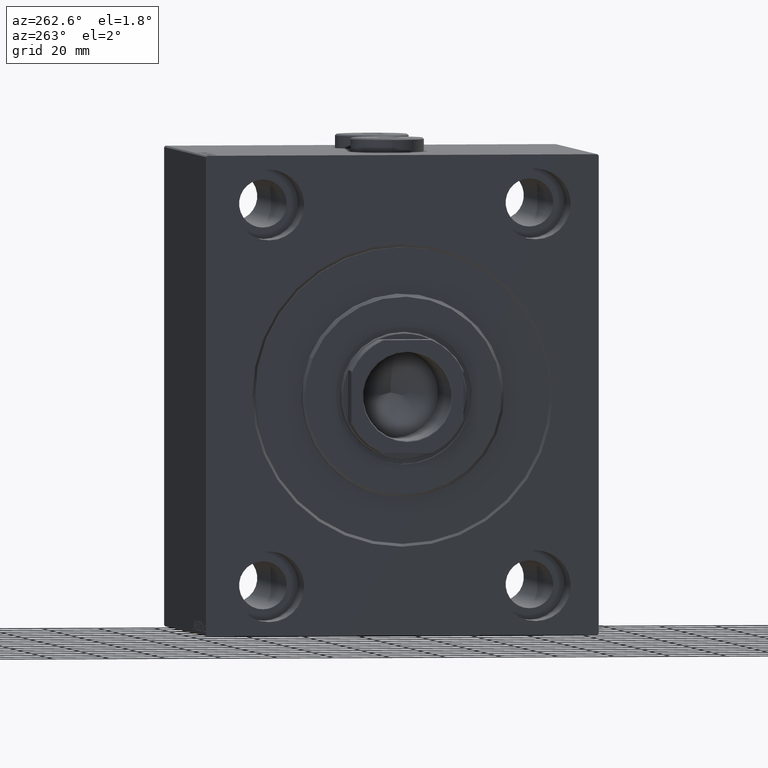
[diagram: clean part render]
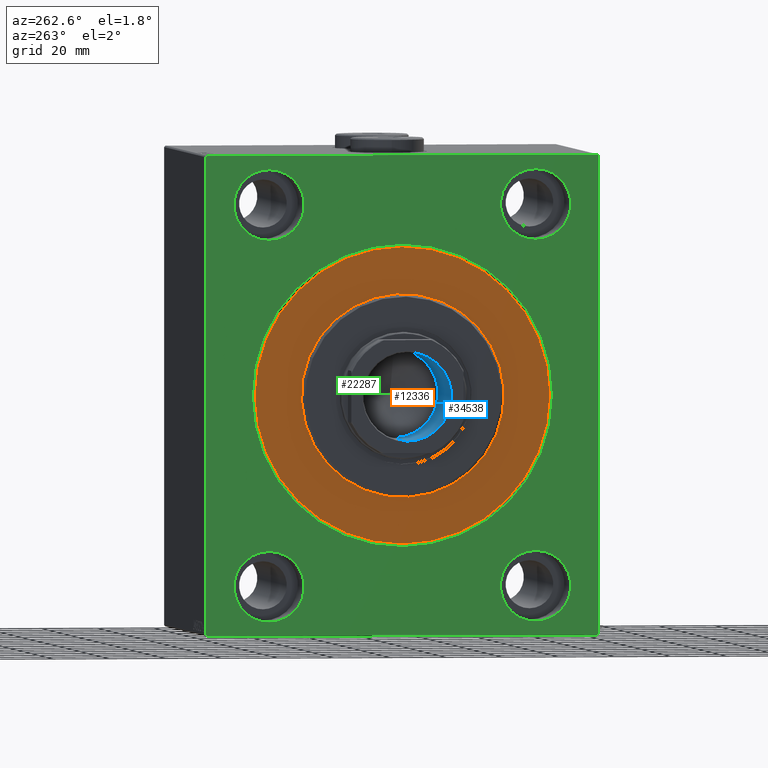
[diagram: same view with three faces highlighted in distinct colors, each labeled with its STEP entity id]
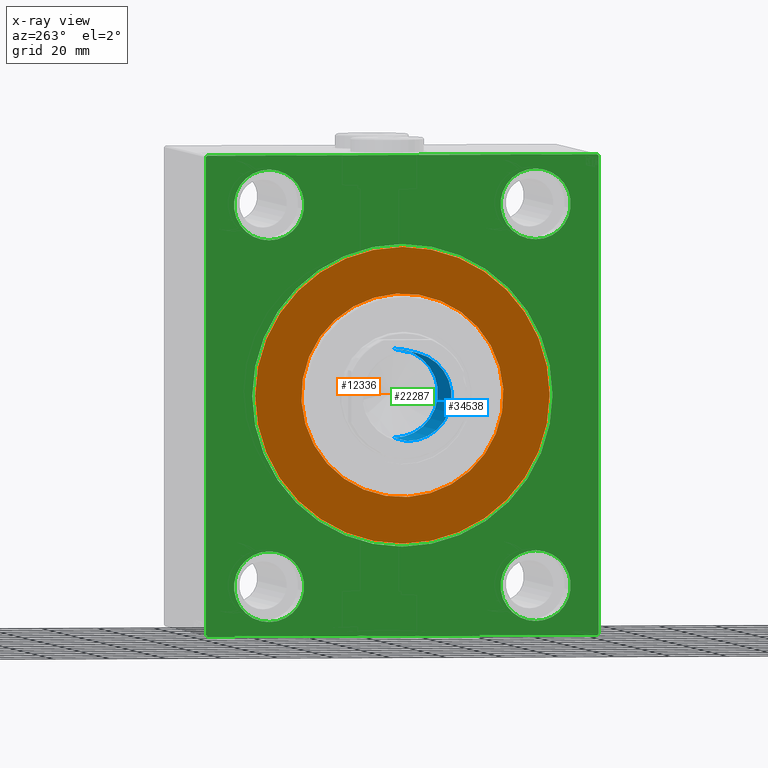
[diagram: x-ray of the same camera — body ghosted, the three highlighted faces saturated]
A machine part, auxiliary view with three faces highlighted in distinct colors.
The next image is the same camera in x-ray (body ghosted, the three faces saturated) — at least one of them is partly hidden behind the body in this view.
Their STEP definitions:

[orange] entity #12336 — the highlighted planar face has unit normal (1, 0, -0).
#628 = ORIENTED_EDGE ( 'NONE', *, *, #36637, .F. ) ;
#725 = CARTESIAN_POINT ( 'NONE',  ( 0.000000000000000000, 0.000000000000000000, 0.000000000000000000 ) ) ;
#790 = ORIENTED_EDGE ( 'NONE', *, *, #11684, .F. ) ;
#2940 = CARTESIAN_POINT ( 'NONE',  ( 0.000000000000000000, 6.429395695523603167E-15, 52.49999999999999289 ) ) ;
#5481 = VERTEX_POINT ( 'NONE', #2940 ) ;
#5605 = AXIS2_PLACEMENT_3D ( 'NONE', #25357, #11427, #39275 ) ;
#5658 = CARTESIAN_POINT ( 'NONE',  ( 0.000000000000000000, 0.000000000000000000, 0.000000000000000000 ) ) ;
#6118 = DIRECTION ( 'NONE',  ( 1.000000000000000000, -0.000000000000000000, 0.000000000000000000 ) ) ;
#7920 = ORIENTED_EDGE ( 'NONE', *, *, #26193, .F. ) ;
#9304 = DIRECTION ( 'NONE',  ( 0.000000000000000000, 0.000000000000000000, -1.000000000000000000 ) ) ;
#11427 = DIRECTION ( 'NONE',  ( -1.000000000000000000, 0.000000000000000000, 0.000000000000000000 ) ) ;
#11684 = EDGE_CURVE ( 'NONE', #39314, #5481, #16684, .T. ) ;
#12336 = ADVANCED_FACE ( 'NONE', ( #20158, #13306 ), #23815, .F. ) ;
#13306 = FACE_OUTER_BOUND ( 'NONE', #32731, .T. ) ;
#13818 = VERTEX_POINT ( 'NONE', #43102 ) ;
#13885 = EDGE_CURVE ( 'NONE', #13818, #19456, #22542, .T. ) ;
#16684 = CIRCLE ( 'NONE', #19577, 52.49999999999999289 ) ;
#18201 = AXIS2_PLACEMENT_3D ( 'NONE', #5658, #6118, #9304 ) ;
#19450 = CIRCLE ( 'NONE', #5605, 52.49999999999999289 ) ;
#19456 = VERTEX_POINT ( 'NONE', #42194 ) ;
#19577 = AXIS2_PLACEMENT_3D ( 'NONE', #725, #34746, #42486 ) ;
#19931 = DIRECTION ( 'NONE',  ( 0.000000000000000000, 0.000000000000000000, 1.000000000000000000 ) ) ;
#20158 = FACE_BOUND ( 'NONE', #38298, .T. ) ;
#21625 = ORIENTED_EDGE ( 'NONE', *, *, #13885, .F. ) ;
#22542 = CIRCLE ( 'NONE', #18201, 36.00000000000000000 ) ;
#22588 = CARTESIAN_POINT ( 'NONE',  ( 0.000000000000000000, 0.000000000000000000, 0.000000000000000000 ) ) ;
#23027 = DIRECTION ( 'NONE',  ( 0.000000000000000000, 0.000000000000000000, -1.000000000000000000 ) ) ;
#23815 = PLANE ( 'NONE',  #37066 ) ;
#25357 = CARTESIAN_POINT ( 'NONE',  ( 0.000000000000000000, 0.000000000000000000, 0.000000000000000000 ) ) ;
#26193 = EDGE_CURVE ( 'NONE', #19456, #13818, #43981, .T. ) ;
#26917 = DIRECTION ( 'NONE',  ( 1.000000000000000000, -0.000000000000000000, 0.000000000000000000 ) ) ;
#27008 = DIRECTION ( 'NONE',  ( -1.000000000000000000, 0.000000000000000000, 0.000000000000000000 ) ) ;
#27236 = CARTESIAN_POINT ( 'NONE',  ( 0.000000000000000000, 0.000000000000000000, 0.000000000000000000 ) ) ;
#32731 = EDGE_LOOP ( 'NONE', ( #790, #628 ) ) ;
#33371 = CARTESIAN_POINT ( 'NONE',  ( 0.000000000000000000, 0.000000000000000000, -52.49999999999999289 ) ) ;
#34746 = DIRECTION ( 'NONE',  ( -1.000000000000000000, 0.000000000000000000, 0.000000000000000000 ) ) ;
#36637 = EDGE_CURVE ( 'NONE', #5481, #39314, #19450, .T. ) ;
#37066 = AXIS2_PLACEMENT_3D ( 'NONE', #27236, #27008, #19931 ) ;
#38298 = EDGE_LOOP ( 'NONE', ( #21625, #7920 ) ) ;
#39275 = DIRECTION ( 'NONE',  ( 0.000000000000000000, 0.000000000000000000, 1.000000000000000000 ) ) ;
#39314 = VERTEX_POINT ( 'NONE', #33371 ) ;
#39650 = AXIS2_PLACEMENT_3D ( 'NONE', #22588, #26917, #23027 ) ;
#42194 = CARTESIAN_POINT ( 'NONE',  ( 0.000000000000000000, 4.408728476930470856E-15, -36.00000000000000000 ) ) ;
#42486 = DIRECTION ( 'NONE',  ( 0.000000000000000000, 0.000000000000000000, 1.000000000000000000 ) ) ;
#43102 = CARTESIAN_POINT ( 'NONE',  ( 0.000000000000000000, 0.000000000000000000, 36.00000000000000000 ) ) ;
#43981 = CIRCLE ( 'NONE', #39650, 36.00000000000000000 ) ;

[blue] entity #34538 — the highlighted cylindrical surface (partial cylindrical patch) has radius 15.75 mm, axis along (-1, 0, 0).
#590 = CARTESIAN_POINT ( 'NONE',  ( 15.74999999999999289, 0.000000000000000000, 64.99999999999998579 ) ) ;
#1357 = VERTEX_POINT ( 'NONE', #33949 ) ;
#3174 = DIRECTION ( 'NONE',  ( -0.000000000000000000, -0.000000000000000000, 1.000000000000000000 ) ) ;
#5962 = ORIENTED_EDGE ( 'NONE', *, *, #35324, .T. ) ;
#6267 = CIRCLE ( 'NONE', #31780, 15.74999999999999289 ) ;
#8331 = VERTEX_POINT ( 'NONE', #24083 ) ;
#9682 = CARTESIAN_POINT ( 'NONE',  ( -15.74999999999999289, 1.928818708657080556E-15, 64.99999999999998579 ) ) ;
#10763 = DIRECTION ( 'NONE',  ( 1.000000000000000000, 0.000000000000000000, 0.000000000000000000 ) ) ;
#12342 = EDGE_LOOP ( 'NONE', ( #23471, #43725, #5962, #32280 ) ) ;
#13895 = CARTESIAN_POINT ( 'NONE',  ( 0.000000000000000000, 0.000000000000000000, 64.99999999999998579 ) ) ;
#15257 = EDGE_CURVE ( 'NONE', #8331, #1357, #30686, .T. ) ;
#16025 = VECTOR ( 'NONE', #27260, 1000.000000000000000 ) ;
#16245 = CIRCLE ( 'NONE', #32289, 15.74999999999999289 ) ;
#17841 = DIRECTION ( 'NONE',  ( -0.000000000000000000, -0.000000000000000000, 1.000000000000000000 ) ) ;
#18478 = EDGE_CURVE ( 'NONE', #33972, #21279, #38269, .T. ) ;
#19429 = DIRECTION ( 'NONE',  ( 1.000000000000000000, 0.000000000000000000, 0.000000000000000000 ) ) ;
#20286 = DIRECTION ( 'NONE',  ( 1.000000000000000000, 0.000000000000000000, 0.000000000000000000 ) ) ;
#21279 = VERTEX_POINT ( 'NONE', #30321 ) ;
#23471 = ORIENTED_EDGE ( 'NONE', *, *, #27397, .F. ) ;
#24083 = CARTESIAN_POINT ( 'NONE',  ( -15.74999999999999289, 1.928818708657080556E-15, 26.99999999999998934 ) ) ;
#24551 = CARTESIAN_POINT ( 'NONE',  ( 15.74999999999999289, 0.000000000000000000, 26.99999999999998934 ) ) ;
#25843 = DIRECTION ( 'NONE',  ( 0.000000000000000000, 0.000000000000000000, 1.000000000000000000 ) ) ;
#26284 = CARTESIAN_POINT ( 'NONE',  ( 0.000000000000000000, 0.000000000000000000, 64.70000000000000284 ) ) ;
#27260 = DIRECTION ( 'NONE',  ( -0.000000000000000000, -0.000000000000000000, 1.000000000000000000 ) ) ;
#27397 = EDGE_CURVE ( 'NONE', #8331, #33972, #16245, .T. ) ;
#28854 = AXIS2_PLACEMENT_3D ( 'NONE', #13895, #3174, #20286 ) ;
#30321 = CARTESIAN_POINT ( 'NONE',  ( 15.74999999999999289, 0.000000000000000000, 64.70000000000000284 ) ) ;
#30686 = LINE ( 'NONE', #9682, #16025 ) ;
#31780 = AXIS2_PLACEMENT_3D ( 'NONE', #26284, #25843, #19429 ) ;
#32280 = ORIENTED_EDGE ( 'NONE', *, *, #18478, .F. ) ;
#32289 = AXIS2_PLACEMENT_3D ( 'NONE', #41583, #17841, #10763 ) ;
#33949 = CARTESIAN_POINT ( 'NONE',  ( -15.74999999999999289, 1.928818708657080556E-15, 64.70000000000000284 ) ) ;
#33972 = VERTEX_POINT ( 'NONE', #24551 ) ;
#34538 = ADVANCED_FACE ( 'NONE', ( #43999 ), #37621, .F. ) ;
#35284 = DIRECTION ( 'NONE',  ( -0.000000000000000000, -0.000000000000000000, 1.000000000000000000 ) ) ;
#35324 = EDGE_CURVE ( 'NONE', #1357, #21279, #6267, .T. ) ;
#37621 = CYLINDRICAL_SURFACE ( 'NONE', #28854, 15.74999999999999289 ) ;
#38269 = LINE ( 'NONE', #590, #43791 ) ;
#41583 = CARTESIAN_POINT ( 'NONE',  ( 0.000000000000000000, 0.000000000000000000, 26.99999999999998934 ) ) ;
#43725 = ORIENTED_EDGE ( 'NONE', *, *, #15257, .T. ) ;
#43791 = VECTOR ( 'NONE', #35284, 1000.000000000000000 ) ;
#43999 = FACE_OUTER_BOUND ( 'NONE', #12342, .T. ) ;

[green] entity #22287 — the highlighted planar face has unit normal (1, 0, 0).
#487 = CIRCLE ( 'NONE', #20899, 12.49999999999999645 ) ;
#532 = EDGE_CURVE ( 'NONE', #42948, #14202, #2428, .T. ) ;
#571 = EDGE_LOOP ( 'NONE', ( #31911, #18922, #41940, #34365, #5295, #13084, #38757, #24993 ) ) ;
#582 = FACE_BOUND ( 'NONE', #12556, .T. ) ;
#1319 = EDGE_CURVE ( 'NONE', #24567, #35156, #44918, .T. ) ;
#1670 = ORIENTED_EDGE ( 'NONE', *, *, #15020, .F. ) ;
#1981 = EDGE_CURVE ( 'NONE', #10377, #41722, #24548, .T. ) ;
#1984 = EDGE_CURVE ( 'NONE', #35156, #24567, #12140, .T. ) ;
#1997 = CARTESIAN_POINT ( 'NONE',  ( 0.000000000000000000, -69.99999999999998579, 84.50000000000001421 ) ) ;
#2203 = DIRECTION ( 'NONE',  ( 0.000000000000000000, 0.000000000000000000, -1.000000000000000000 ) ) ;
#2428 = LINE ( 'NONE', #9039, #21610 ) ;
#2488 = EDGE_CURVE ( 'NONE', #25883, #10776, #487, .T. ) ;
#2551 = CARTESIAN_POINT ( 'NONE',  ( 0.000000000000000000, -47.49999999999997868, 67.50000000000000000 ) ) ;
#2691 = CARTESIAN_POINT ( 'NONE',  ( 0.000000000000000000, 0.000000000000000000, 0.000000000000000000 ) ) ;
#2882 = DIRECTION ( 'NONE',  ( 0.000000000000000000, -1.000000000000000000, -9.912705577010325549E-17 ) ) ;
#2924 = DIRECTION ( 'NONE',  ( 0.000000000000000000, 0.000000000000000000, -1.000000000000000000 ) ) ;
#3223 = CARTESIAN_POINT ( 'NONE',  ( 0.000000000000000000, 0.000000000000000000, 53.50000000000000000 ) ) ;
#3432 = CARTESIAN_POINT ( 'NONE',  ( 0.000000000000000000, 47.50000000000000711, 67.50000000000000000 ) ) ;
#3793 = FACE_BOUND ( 'NONE', #6021, .T. ) ;
#3835 = EDGE_CURVE ( 'NONE', #41722, #10377, #14377, .T. ) ;
#4409 = CARTESIAN_POINT ( 'NONE',  ( 0.000000000000000000, 6.551860375438339893E-15, -53.50000000000000000 ) ) ;
#4809 = CIRCLE ( 'NONE', #35421, 12.50000000000001066 ) ;
#5084 = DIRECTION ( 'NONE',  ( 0.000000000000000000, 0.000000000000000000, 1.000000000000000000 ) ) ;
#5264 = AXIS2_PLACEMENT_3D ( 'NONE', #38937, #7652, #35502 ) ;
#5281 = DIRECTION ( 'NONE',  ( 0.000000000000000000, 0.000000000000000000, 1.000000000000000000 ) ) ;
#5295 = ORIENTED_EDGE ( 'NONE', *, *, #13058, .F. ) ;
#5740 = DIRECTION ( 'NONE',  ( -1.000000000000000000, 0.000000000000000000, 0.000000000000000000 ) ) ;
#5759 = VECTOR ( 'NONE', #32827, 1000.000000000000000 ) ;
#5998 = EDGE_CURVE ( 'NONE', #7835, #26839, #32304, .T. ) ;
#6021 = EDGE_LOOP ( 'NONE', ( #16280, #42083 ) ) ;
#6339 = VECTOR ( 'NONE', #22976, 1000.000000000000000 ) ;
#6358 = VERTEX_POINT ( 'NONE', #38872 ) ;
#7037 = CARTESIAN_POINT ( 'NONE',  ( 0.000000000000000000, -47.49999999999999289, -67.50000000000000000 ) ) ;
#7652 = DIRECTION ( 'NONE',  ( 1.000000000000000000, 0.000000000000000000, 0.000000000000000000 ) ) ;
#7835 = VERTEX_POINT ( 'NONE', #35347 ) ;
#7977 = EDGE_CURVE ( 'NONE', #40361, #14202, #8835, .T. ) ;
#8257 = DIRECTION ( 'NONE',  ( -1.000000000000000000, 0.000000000000000000, 0.000000000000000000 ) ) ;
#8660 = VECTOR ( 'NONE', #13170, 1000.000000000000000 ) ;
#8831 = EDGE_LOOP ( 'NONE', ( #16528, #32120 ) ) ;
#8835 = LINE ( 'NONE', #15921, #8660 ) ;
#8931 = EDGE_CURVE ( 'NONE', #15241, #35295, #43633, .T. ) ;
#9039 = CARTESIAN_POINT ( 'NONE',  ( 0.000000000000000000, -69.99999999999998579, 84.99999999999998579 ) ) ;
#9153 = CARTESIAN_POINT ( 'NONE',  ( 0.000000000000000000, -47.49999999999997868, 67.50000000000000000 ) ) ;
#9656 = CARTESIAN_POINT ( 'NONE',  ( 0.000000000000000000, -69.99999999999998579, 84.50000000000001421 ) ) ;
#9994 = EDGE_CURVE ( 'NONE', #44339, #6358, #36251, .T. ) ;
#10233 = ORIENTED_EDGE ( 'NONE', *, *, #3835, .F. ) ;
#10377 = VERTEX_POINT ( 'NONE', #23628 ) ;
#10733 = DIRECTION ( 'NONE',  ( 0.000000000000000000, 0.000000000000000000, 1.000000000000000000 ) ) ;
#10776 = VERTEX_POINT ( 'NONE', #29857 ) ;
#10779 = EDGE_LOOP ( 'NONE', ( #11124, #43322 ) ) ;
#11124 = ORIENTED_EDGE ( 'NONE', *, *, #18637, .F. ) ;
#11418 = AXIS2_PLACEMENT_3D ( 'NONE', #2691, #28186, #2924 ) ;
#11464 = CARTESIAN_POINT ( 'NONE',  ( 0.000000000000000000, 47.50000000000000711, -67.50000000000000000 ) ) ;
#11963 = ORIENTED_EDGE ( 'NONE', *, *, #1981, .F. ) ;
#12140 = CIRCLE ( 'NONE', #28913, 53.50000000000000000 ) ;
#12335 = VECTOR ( 'NONE', #22988, 999.9999999999998863 ) ;
#12492 = LINE ( 'NONE', #19576, #5759 ) ;
#12556 = EDGE_LOOP ( 'NONE', ( #11963, #10233 ) ) ;
#13058 = EDGE_CURVE ( 'NONE', #44339, #26839, #12492, .T. ) ;
#13084 = ORIENTED_EDGE ( 'NONE', *, *, #9994, .T. ) ;
#13170 = DIRECTION ( 'NONE',  ( -0.000000000000000000, -0.7071067811865573427, 0.7071067811865378028 ) ) ;
#13588 = CARTESIAN_POINT ( 'NONE',  ( 0.000000000000000000, 0.000000000000000000, 0.000000000000000000 ) ) ;
#13591 = CARTESIAN_POINT ( 'NONE',  ( 0.000000000000000000, 70.00000000000001421, 85.00000000000000000 ) ) ;
#14202 = VERTEX_POINT ( 'NONE', #33663 ) ;
#14377 = CIRCLE ( 'NONE', #39876, 12.49999999999999645 ) ;
#14572 = EDGE_CURVE ( 'NONE', #42948, #27786, #30662, .T. ) ;
#15020 = EDGE_CURVE ( 'NONE', #10776, #25883, #30597, .T. ) ;
#15241 = VERTEX_POINT ( 'NONE', #30229 ) ;
#15921 = CARTESIAN_POINT ( 'NONE',  ( 0.000000000000000000, -69.49999999999998579, -85.00000000000002842 ) ) ;
#15967 = CARTESIAN_POINT ( 'NONE',  ( 0.000000000000000000, -47.49999999999997868, 55.00000000000000000 ) ) ;
#16280 = ORIENTED_EDGE ( 'NONE', *, *, #35226, .F. ) ;
#16528 = ORIENTED_EDGE ( 'NONE', *, *, #1319, .T. ) ;
#16807 = LINE ( 'NONE', #13591, #37392 ) ;
#17875 = CARTESIAN_POINT ( 'NONE',  ( 0.000000000000000000, -47.49999999999999289, -80.00000000000000000 ) ) ;
#18637 = EDGE_CURVE ( 'NONE', #35295, #15241, #35813, .T. ) ;
#18922 = ORIENTED_EDGE ( 'NONE', *, *, #14572, .T. ) ;
#19496 = DIRECTION ( 'NONE',  ( 0.000000000000000000, 0.000000000000000000, 1.000000000000000000 ) ) ;
#19576 = CARTESIAN_POINT ( 'NONE',  ( 0.000000000000000000, 70.00000000000002842, -85.00000000000001421 ) ) ;
#19988 = DIRECTION ( 'NONE',  ( -1.000000000000000000, 0.000000000000000000, 0.000000000000000000 ) ) ;
#20181 = CARTESIAN_POINT ( 'NONE',  ( 0.000000000000000000, 47.50000000000000711, 67.50000000000000000 ) ) ;
#20315 = DIRECTION ( 'NONE',  ( 0.000000000000000000, 0.000000000000000000, 1.000000000000000000 ) ) ;
#20899 = AXIS2_PLACEMENT_3D ( 'NONE', #11464, #8257, #5281 ) ;
#21137 = FACE_BOUND ( 'NONE', #8831, .T. ) ;
#21610 = VECTOR ( 'NONE', #2203, 1000.000000000000000 ) ;
#21860 = CARTESIAN_POINT ( 'NONE',  ( 0.000000000000000000, -47.49999999999997868, 80.00000000000001421 ) ) ;
#21879 = EDGE_LOOP ( 'NONE', ( #1670, #23244 ) ) ;
#21961 = AXIS2_PLACEMENT_3D ( 'NONE', #20181, #22918, #19496 ) ;
#22287 = ADVANCED_FACE ( 'NONE', ( #21137, #35057, #3793, #42128, #582, #28442 ), #25013, .F. ) ;
#22474 = CARTESIAN_POINT ( 'NONE',  ( 0.000000000000000000, 47.50000000000000711, -80.00000000000000000 ) ) ;
#22918 = DIRECTION ( 'NONE',  ( -1.000000000000000000, 0.000000000000000000, 0.000000000000000000 ) ) ;
#22976 = DIRECTION ( 'NONE',  ( 0.000000000000000000, 1.000000000000000000, 9.912705577010325549E-17 ) ) ;
#22988 = DIRECTION ( 'NONE',  ( 0.000000000000000000, -0.7071067811865376918, -0.7071067811865574537 ) ) ;
#23244 = ORIENTED_EDGE ( 'NONE', *, *, #2488, .F. ) ;
#23321 = DIRECTION ( 'NONE',  ( -1.000000000000000000, 0.000000000000000000, 0.000000000000000000 ) ) ;
#23416 = DIRECTION ( 'NONE',  ( 0.000000000000000000, 0.000000000000000000, 1.000000000000000000 ) ) ;
#23628 = CARTESIAN_POINT ( 'NONE',  ( 0.000000000000000000, -47.49999999999999289, -55.00000000000000711 ) ) ;
#24229 = EDGE_CURVE ( 'NONE', #7835, #27786, #16807, .T. ) ;
#24548 = CIRCLE ( 'NONE', #42026, 12.49999999999999645 ) ;
#24567 = VERTEX_POINT ( 'NONE', #3223 ) ;
#24993 = ORIENTED_EDGE ( 'NONE', *, *, #7977, .T. ) ;
#25013 = PLANE ( 'NONE',  #5264 ) ;
#25086 = VERTEX_POINT ( 'NONE', #21860 ) ;
#25883 = VERTEX_POINT ( 'NONE', #22474 ) ;
#26839 = VERTEX_POINT ( 'NONE', #39612 ) ;
#27786 = VERTEX_POINT ( 'NONE', #35968 ) ;
#28079 = DIRECTION ( 'NONE',  ( -1.000000000000000000, 0.000000000000000000, 0.000000000000000000 ) ) ;
#28186 = DIRECTION ( 'NONE',  ( 1.000000000000000000, 0.000000000000000000, 0.000000000000000000 ) ) ;
#28442 = FACE_OUTER_BOUND ( 'NONE', #571, .T. ) ;
#28913 = AXIS2_PLACEMENT_3D ( 'NONE', #13588, #44396, #41441 ) ;
#29857 = CARTESIAN_POINT ( 'NONE',  ( 0.000000000000000000, 47.50000000000000711, -55.00000000000000711 ) ) ;
#29940 = DIRECTION ( 'NONE',  ( 0.000000000000000000, 0.000000000000000000, 1.000000000000000000 ) ) ;
#30229 = CARTESIAN_POINT ( 'NONE',  ( 0.000000000000000000, 47.50000000000000711, 55.00000000000000000 ) ) ;
#30424 = CARTESIAN_POINT ( 'NONE',  ( 0.000000000000000000, 70.00000000000002842, -84.50000000000004263 ) ) ;
#30471 = VECTOR ( 'NONE', #32083, 1000.000000000000000 ) ;
#30597 = CIRCLE ( 'NONE', #36420, 12.49999999999999645 ) ;
#30662 = LINE ( 'NONE', #9656, #40066 ) ;
#31297 = AXIS2_PLACEMENT_3D ( 'NONE', #3432, #44713, #20315 ) ;
#31911 = ORIENTED_EDGE ( 'NONE', *, *, #532, .F. ) ;
#32083 = DIRECTION ( 'NONE',  ( -0.000000000000000000, 0.7071067811865573427, -0.7071067811865378028 ) ) ;
#32120 = ORIENTED_EDGE ( 'NONE', *, *, #1984, .T. ) ;
#32304 = LINE ( 'NONE', #39809, #30471 ) ;
#32827 = DIRECTION ( 'NONE',  ( 0.000000000000000000, -8.163404592832031500E-17, 1.000000000000000000 ) ) ;
#32904 = CARTESIAN_POINT ( 'NONE',  ( 0.000000000000000000, 47.50000000000000711, 80.00000000000001421 ) ) ;
#33148 = VERTEX_POINT ( 'NONE', #15967 ) ;
#33645 = EDGE_CURVE ( 'NONE', #33148, #25086, #39050, .T. ) ;
#33663 = CARTESIAN_POINT ( 'NONE',  ( 0.000000000000000000, -69.99999999999998579, -84.50000000000004263 ) ) ;
#34365 = ORIENTED_EDGE ( 'NONE', *, *, #5998, .T. ) ;
#34890 = DIRECTION ( 'NONE',  ( 0.000000000000000000, 0.000000000000000000, 1.000000000000000000 ) ) ;
#35057 = FACE_BOUND ( 'NONE', #21879, .T. ) ;
#35156 = VERTEX_POINT ( 'NONE', #4409 ) ;
#35226 = EDGE_CURVE ( 'NONE', #25086, #33148, #4809, .T. ) ;
#35295 = VERTEX_POINT ( 'NONE', #32904 ) ;
#35347 = CARTESIAN_POINT ( 'NONE',  ( 0.000000000000000000, 69.50000000000001421, 85.00000000000000000 ) ) ;
#35421 = AXIS2_PLACEMENT_3D ( 'NONE', #9153, #5740, #29940 ) ;
#35502 = DIRECTION ( 'NONE',  ( 0.000000000000000000, 0.000000000000000000, -1.000000000000000000 ) ) ;
#35813 = CIRCLE ( 'NONE', #21961, 12.50000000000001066 ) ;
#35968 = CARTESIAN_POINT ( 'NONE',  ( 0.000000000000000000, -69.50000000000001421, 84.99999999999998579 ) ) ;
#36251 = LINE ( 'NONE', #36681, #12335 ) ;
#36420 = AXIS2_PLACEMENT_3D ( 'NONE', #42221, #28079, #10733 ) ;
#36681 = CARTESIAN_POINT ( 'NONE',  ( 0.000000000000000000, 70.00000000000002842, -84.50000000000004263 ) ) ;
#37108 = EDGE_CURVE ( 'NONE', #40361, #6358, #40550, .T. ) ;
#37266 = DIRECTION ( 'NONE',  ( -0.000000000000000000, 0.7071067811865474617, 0.7071067811865474617 ) ) ;
#37350 = CARTESIAN_POINT ( 'NONE',  ( 0.000000000000000000, -69.99999999999998579, -85.00000000000002842 ) ) ;
#37392 = VECTOR ( 'NONE', #2882, 1000.000000000000000 ) ;
#38021 = CARTESIAN_POINT ( 'NONE',  ( 0.000000000000000000, -47.49999999999999289, -67.50000000000000000 ) ) ;
#38757 = ORIENTED_EDGE ( 'NONE', *, *, #37108, .F. ) ;
#38770 = DIRECTION ( 'NONE',  ( -1.000000000000000000, 0.000000000000000000, 0.000000000000000000 ) ) ;
#38872 = CARTESIAN_POINT ( 'NONE',  ( 0.000000000000000000, 69.50000000000007105, -85.00000000000001421 ) ) ;
#38937 = CARTESIAN_POINT ( 'NONE',  ( 0.000000000000000000, 0.000000000000000000, 0.000000000000000000 ) ) ;
#39050 = CIRCLE ( 'NONE', #42660, 12.50000000000001066 ) ;
#39612 = CARTESIAN_POINT ( 'NONE',  ( 0.000000000000000000, 70.00000000000001421, 84.50000000000001421 ) ) ;
#39809 = CARTESIAN_POINT ( 'NONE',  ( 0.000000000000000000, 69.50000000000001421, 85.00000000000000000 ) ) ;
#39876 = AXIS2_PLACEMENT_3D ( 'NONE', #7037, #38770, #34890 ) ;
#40066 = VECTOR ( 'NONE', #37266, 1000.000000000000114 ) ;
#40361 = VERTEX_POINT ( 'NONE', #44665 ) ;
#40550 = LINE ( 'NONE', #37350, #6339 ) ;
#41441 = DIRECTION ( 'NONE',  ( 0.000000000000000000, 0.000000000000000000, -1.000000000000000000 ) ) ;
#41722 = VERTEX_POINT ( 'NONE', #17875 ) ;
#41940 = ORIENTED_EDGE ( 'NONE', *, *, #24229, .F. ) ;
#42026 = AXIS2_PLACEMENT_3D ( 'NONE', #38021, #19988, #23416 ) ;
#42083 = ORIENTED_EDGE ( 'NONE', *, *, #33645, .F. ) ;
#42128 = FACE_BOUND ( 'NONE', #10779, .T. ) ;
#42221 = CARTESIAN_POINT ( 'NONE',  ( 0.000000000000000000, 47.50000000000000711, -67.50000000000000000 ) ) ;
#42660 = AXIS2_PLACEMENT_3D ( 'NONE', #2551, #23321, #5084 ) ;
#42948 = VERTEX_POINT ( 'NONE', #1997 ) ;
#43322 = ORIENTED_EDGE ( 'NONE', *, *, #8931, .F. ) ;
#43633 = CIRCLE ( 'NONE', #31297, 12.50000000000001066 ) ;
#44339 = VERTEX_POINT ( 'NONE', #30424 ) ;
#44396 = DIRECTION ( 'NONE',  ( 1.000000000000000000, 0.000000000000000000, 0.000000000000000000 ) ) ;
#44665 = CARTESIAN_POINT ( 'NONE',  ( 0.000000000000000000, -69.49999999999998579, -85.00000000000002842 ) ) ;
#44713 = DIRECTION ( 'NONE',  ( -1.000000000000000000, 0.000000000000000000, 0.000000000000000000 ) ) ;
#44918 = CIRCLE ( 'NONE', #11418, 53.50000000000000000 ) ;